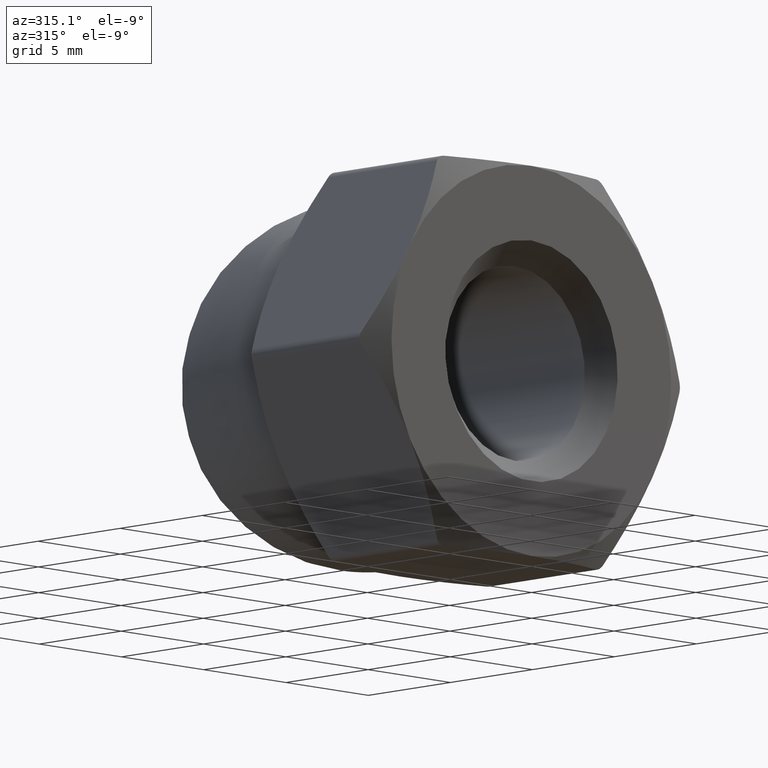
[diagram: clean part render]
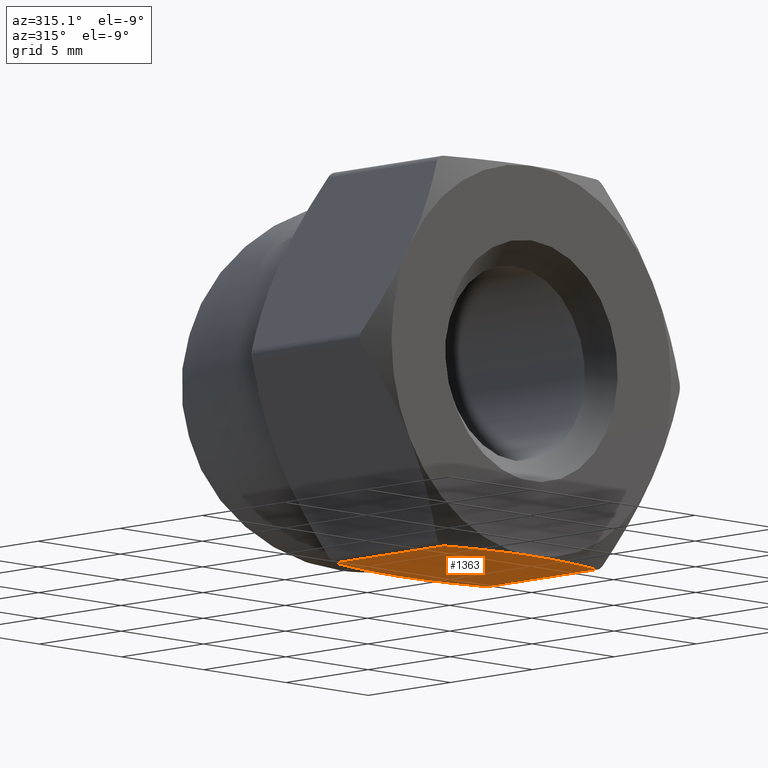
[diagram: same view with one face highlighted and labeled with its STEP entity id]
A machine part, auxiliary view. The second image highlights one B-rep face of the part: STEP entity #1363.
In plain terms, the highlighted planar face has unit normal (0, -0, 1).
Its self-contained STEP definition (entity closure, byte-faithful):
#31 = CARTESIAN_POINT ( 'NONE',  ( -3.095199511053134500, 0.2975784345721721500, -8.499999999999996400 ) ) ;
#120 = DIRECTION ( 'NONE',  ( 0.0000000000000000000, -1.000000000000000000, 0.0000000000000000000 ) ) ;
#128 = CARTESIAN_POINT ( 'NONE',  ( -0.7794072466125292500, -9.554531645028507800E-016, -8.499999999999998200 ) ) ;
#139 = VERTEX_POINT ( 'NONE', #423 ) ;
#162 = EDGE_CURVE ( 'NONE', #1307, #747, #165, .T. ) ;
#165 = LINE ( 'NONE', #634, #396 ) ;
#212 = CARTESIAN_POINT ( 'NONE',  ( 4.618802153517005000, 0.6777214052601855400, -8.500000000000000000 ) ) ;
#219 = CARTESIAN_POINT ( 'NONE',  ( 4.618802153517003200, 7.322278594739815500, -8.500000000000000000 ) ) ;
#236 = EDGE_CURVE ( 'NONE', #1230, #747, #1297, .T. ) ;
#256 = B_SPLINE_CURVE_WITH_KNOTS ( 'NONE', 3,
 ( #219, #1068, #985, #651, #873, #659 ),
 .UNSPECIFIED., .F., .F.,
 ( 4, 2, 4 ),
 ( 0.003897245248024088800, 0.006224712035709614400, 0.008552178823395139100 ),
 .UNSPECIFIED. ) ;
#316 = ORIENTED_EDGE ( 'NONE', *, *, #922, .F. ) ;
#325 = CARTESIAN_POINT ( 'NONE',  ( 1.569622573620889700, 0.06444551714245436200, -8.499999999999996400 ) ) ;
#330 = EDGE_CURVE ( 'NONE', #139, #427, #1047, .T. ) ;
#382 = CARTESIAN_POINT ( 'NONE',  ( 4.618802153517003200, 7.322278594739815500, -8.500000000000000000 ) ) ;
#396 = VECTOR ( 'NONE', #120, 1000.000000000000000 ) ;
#398 = CARTESIAN_POINT ( 'NONE',  ( -4.618802153517092000, 7.322278594739825200, -8.499999999999996400 ) ) ;
#415 = DIRECTION ( 'NONE',  ( 1.000000000000000000, 0.0000000000000000000, -3.534857879381551100E-016 ) ) ;
#420 = CARTESIAN_POINT ( 'NONE',  ( 0.7795462929344202400, -9.834052517622423000E-016, -8.499999999999998200 ) ) ;
#423 = CARTESIAN_POINT ( 'NONE',  ( -4.618802153517093800, 0.6777214052601756600, -8.499999999999996400 ) ) ;
#427 = VERTEX_POINT ( 'NONE', #1178 ) ;
#436 = CARTESIAN_POINT ( 'NONE',  ( -3.865219095910880300, 0.4699907442509849200, -8.499999999999994700 ) ) ;
#454 = B_SPLINE_CURVE_WITH_KNOTS ( 'NONE', 3,
 ( #1028, #605, #1040, #1139, #622, #398 ),
 .UNSPECIFIED., .F., .F.,
 ( 4, 2, 4 ),
 ( 0.008552178823395139100, 0.01087923046486150700, 0.01320628210632787700 ),
 .UNSPECIFIED. ) ;
#525 = CARTESIAN_POINT ( 'NONE',  ( 3.870871067308887500, 0.4715487513514492500, -8.500000000000000000 ) ) ;
#542 = ORIENTED_EDGE ( 'NONE', *, *, #162, .T. ) ;
#548 = CARTESIAN_POINT ( 'NONE',  ( -4.618802153517093800, 0.6777214052601756600, -8.499999999999996400 ) ) ;
#555 = CARTESIAN_POINT ( 'NONE',  ( -3.004629197474318900E-015, 0.0000000000000000000, -8.500000000000000000 ) ) ;
#581 = AXIS2_PLACEMENT_3D ( 'NONE', #729, #1268, #415 ) ;
#599 = CARTESIAN_POINT ( 'NONE',  ( -3.004629197474318900E-015, 0.0000000000000000000, -8.500000000000000000 ) ) ;
#605 = CARTESIAN_POINT ( 'NONE',  ( -0.7794072466125268100, 8.000000000000001800, -8.499999999999998200 ) ) ;
#622 = CARTESIAN_POINT ( 'NONE',  ( -3.865219095910878100, 7.530009255749018100, -8.499999999999998200 ) ) ;
#634 = CARTESIAN_POINT ( 'NONE',  ( 4.618802153517005800, 8.000000000000000000, -8.500000000000000000 ) ) ;
#651 = CARTESIAN_POINT ( 'NONE',  ( 1.569622573620892200, 7.935554482857546600, -8.499999999999998200 ) ) ;
#656 = CARTESIAN_POINT ( 'NONE',  ( -4.618802153517008500, 8.000000000000000000, -8.499999999999996400 ) ) ;
#659 = CARTESIAN_POINT ( 'NONE',  ( -3.004629197474318900E-015, 8.000000000000000000, -8.500000000000000000 ) ) ;
#680 = DIRECTION ( 'NONE',  ( -0.0000000000000000000, 1.000000000000000000, -0.0000000000000000000 ) ) ;
#729 = CARTESIAN_POINT ( 'NONE',  ( 4.907477288111818000, 8.000000000000000000, -8.500000000000000000 ) ) ;
#744 = ORIENTED_EDGE ( 'NONE', *, *, #1316, .F. ) ;
#747 = VERTEX_POINT ( 'NONE', #212 ) ;
#753 = CARTESIAN_POINT ( 'NONE',  ( -1.554076649557146300, 0.06285836280121937000, -8.499999999999998200 ) ) ;
#765 = CARTESIAN_POINT ( 'NONE',  ( -3.004629197474318900E-015, 8.000000000000000000, -8.500000000000000000 ) ) ;
#807 = VECTOR ( 'NONE', #680, 1000.000000000000000 ) ;
#855 = CARTESIAN_POINT ( 'NONE',  ( 4.618802153517005000, 0.6777214052601855400, -8.500000000000000000 ) ) ;
#863 = ORIENTED_EDGE ( 'NONE', *, *, #236, .F. ) ;
#873 = CARTESIAN_POINT ( 'NONE',  ( 0.7795462929344225700, 8.000000000000001800, -8.499999999999998200 ) ) ;
#904 = EDGE_CURVE ( 'NONE', #1307, #1016, #256, .T. ) ;
#922 = EDGE_CURVE ( 'NONE', #139, #1230, #1138, .T. ) ;
#985 = CARTESIAN_POINT ( 'NONE',  ( 3.113225581296843900, 7.698878383715253900, -8.500000000000001800 ) ) ;
#1010 = FACE_OUTER_BOUND ( 'NONE', #1101, .T. ) ;
#1016 = VERTEX_POINT ( 'NONE', #765 ) ;
#1028 = CARTESIAN_POINT ( 'NONE',  ( -3.004629197474318900E-015, 8.000000000000000000, -8.500000000000000000 ) ) ;
#1040 = CARTESIAN_POINT ( 'NONE',  ( -1.554076649557143400, 7.937141637198779500, -8.499999999999998200 ) ) ;
#1047 = LINE ( 'NONE', #656, #807 ) ;
#1055 = PLANE ( 'NONE',  #581 ) ;
#1068 = CARTESIAN_POINT ( 'NONE',  ( 3.870871067308888900, 7.528451248648552000, -8.500000000000000000 ) ) ;
#1084 = ORIENTED_EDGE ( 'NONE', *, *, #330, .T. ) ;
#1101 = EDGE_LOOP ( 'NONE', ( #316, #1084, #744, #1231, #542, #863 ) ) ;
#1138 = B_SPLINE_CURVE_WITH_KNOTS ( 'NONE', 3,
 ( #548, #436, #31, #753, #128, #555 ),
 .UNSPECIFIED., .F., .F.,
 ( 4, 2, 4 ),
 ( 0.009054172410498525000, 0.01138718849256199200, 0.01372020457462546000 ),
 .UNSPECIFIED. ) ;
#1139 = CARTESIAN_POINT ( 'NONE',  ( -3.095199511053129600, 7.702421565427826500, -8.499999999999996400 ) ) ;
#1168 = CARTESIAN_POINT ( 'NONE',  ( 3.113225581296841200, 0.3011216162847453700, -8.499999999999996400 ) ) ;
#1178 = CARTESIAN_POINT ( 'NONE',  ( -4.618802153517092000, 7.322278594739825200, -8.499999999999996400 ) ) ;
#1230 = VERTEX_POINT ( 'NONE', #599 ) ;
#1231 = ORIENTED_EDGE ( 'NONE', *, *, #904, .F. ) ;
#1268 = DIRECTION ( 'NONE',  ( 3.534857879381551100E-016, -0.0000000000000000000, 1.000000000000000000 ) ) ;
#1278 = CARTESIAN_POINT ( 'NONE',  ( -3.004629197474318900E-015, 0.0000000000000000000, -8.500000000000000000 ) ) ;
#1297 = B_SPLINE_CURVE_WITH_KNOTS ( 'NONE', 3,
 ( #1278, #420, #325, #1168, #525, #855 ),
 .UNSPECIFIED., .F., .F.,
 ( 4, 2, 4 ),
 ( 0.01372020457462546000, 0.01605363686696481200, 0.01838706915930416600 ),
 .UNSPECIFIED. ) ;
#1307 = VERTEX_POINT ( 'NONE', #382 ) ;
#1316 = EDGE_CURVE ( 'NONE', #1016, #427, #454, .T. ) ;
#1363 = ADVANCED_FACE ( 'NONE', ( #1010 ), #1055, .F. ) ;